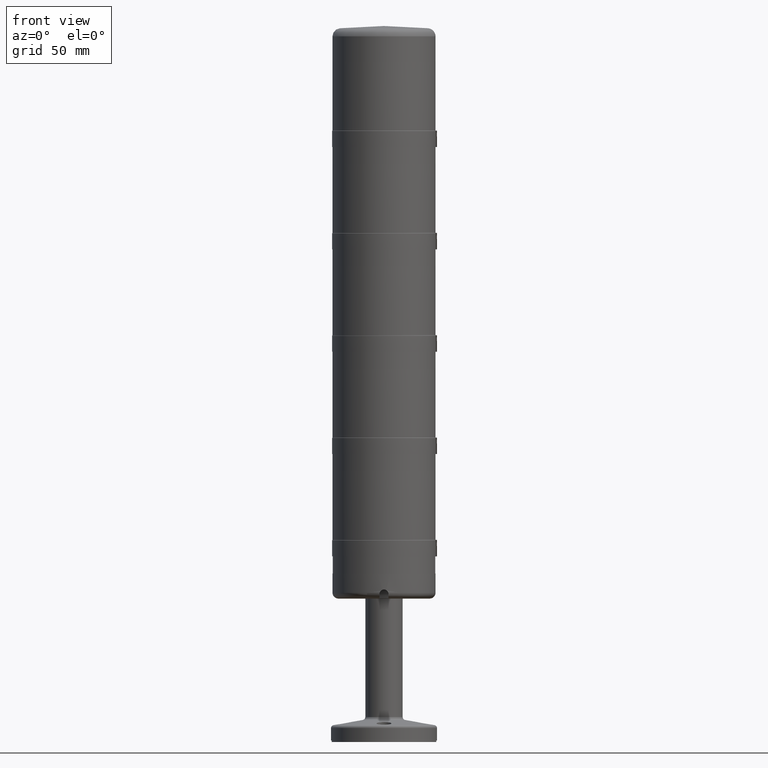
[diagram: clean part render]
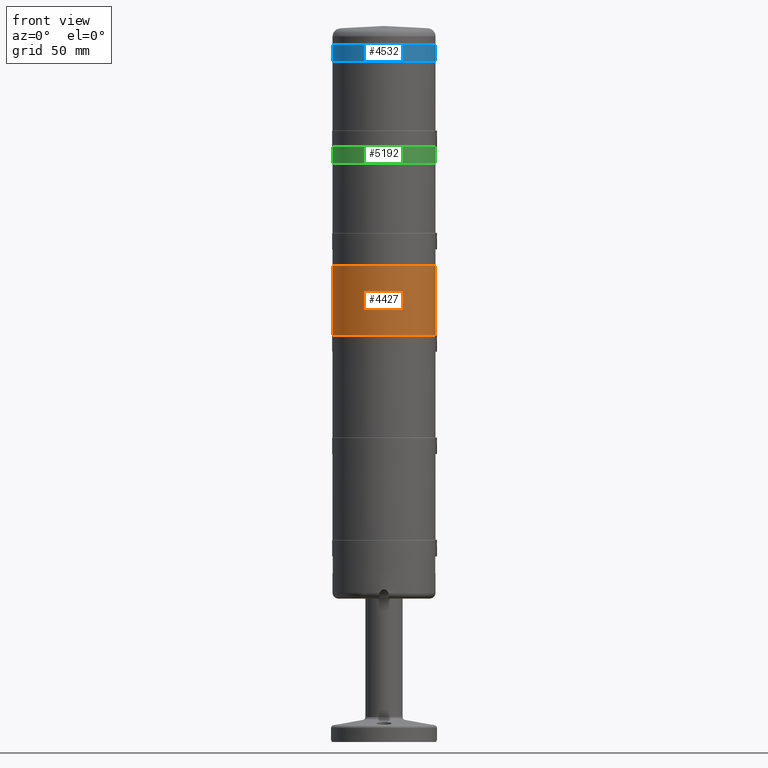
[diagram: same view with three faces highlighted in distinct colors, each labeled with its STEP entity id]
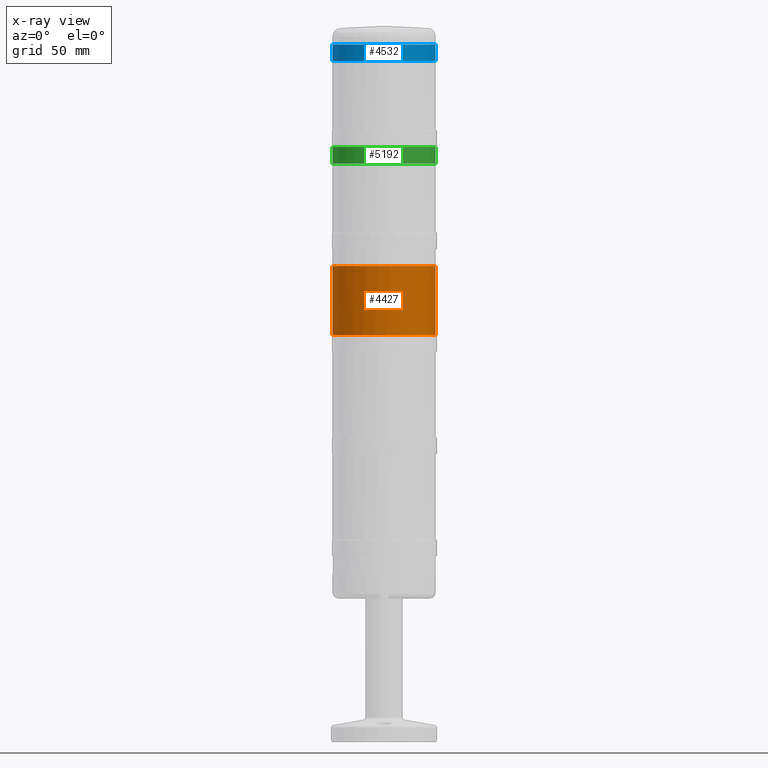
[diagram: x-ray of the same camera — body ghosted, the three highlighted faces saturated]
A machine part, front view with three faces highlighted in distinct colors.
The next image is the same camera in x-ray (body ghosted, the three faces saturated) — at least one of them is partly hidden behind the body in this view.
Their STEP definitions:

[orange] entity #4427 — the highlighted cylindrical surface (bore or boss wall) has radius 34.5 mm, axis along (0, 0, -1).
#3333=CYLINDRICAL_SURFACE('',#20079,34.5);
#3761=FACE_BOUND('',#7136,.T.);
#3762=FACE_BOUND('',#7137,.T.);
#4427=ADVANCED_FACE('',(#3761,#3762),#3333,.T.);
#7136=EDGE_LOOP('',(#8810));
#7137=EDGE_LOOP('',(#8811,#8812));
#8810=ORIENTED_EDGE('',*,*,#16238,.T.);
#8811=ORIENTED_EDGE('',*,*,#16239,.F.);
#8812=ORIENTED_EDGE('',*,*,#16182,.F.);
#14242=VERTEX_POINT('',#28781);
#14243=VERTEX_POINT('',#28783);
#14289=VERTEX_POINT('',#28902);
#16182=EDGE_CURVE('',#14242,#14243,#18900,.T.);
#16238=EDGE_CURVE('',#14289,#14289,#18935,.T.);
#16239=EDGE_CURVE('',#14243,#14242,#18936,.T.);
#18900=CIRCLE('',#20034,34.5);
#18935=CIRCLE('',#20077,34.5);
#18936=CIRCLE('',#20078,34.5);
#20034=AXIS2_PLACEMENT_3D('',#28782,#22553,#22554);
#20077=AXIS2_PLACEMENT_3D('',#28901,#22657,#22658);
#20078=AXIS2_PLACEMENT_3D('',#28903,#22659,#22660);
#20079=AXIS2_PLACEMENT_3D('',#28904,#22661,#22662);
#22553=DIRECTION('',(0.,0.,-1.));
#22554=DIRECTION('',(-1.,0.,0.));
#22657=DIRECTION('',(0.,0.,-1.));
#22658=DIRECTION('',(-1.,0.,0.));
#22659=DIRECTION('',(0.,0.,-1.));
#22660=DIRECTION('',(-1.,0.,0.));
#22661=DIRECTION('',(0.,0.,-1.));
#22662=DIRECTION('',(-1.,0.,0.));
#28781=CARTESIAN_POINT('',(34.2245537372076,-4.35085296108588,215.));
#28782=CARTESIAN_POINT('',(0.,-7.91033905045424E-016,215.));
#28783=CARTESIAN_POINT('',(33.4740683936435,8.35085296108588,215.));
#28901=CARTESIAN_POINT('',(0.,-7.91033905045424E-016,261.3));
#28902=CARTESIAN_POINT('',(-34.5,-7.91033905045424E-016,261.3));
#28903=CARTESIAN_POINT('',(0.,-7.91033905045424E-016,215.));
#28904=CARTESIAN_POINT('',(0.,-7.91033905045424E-016,204.));

[blue] entity #4532 — the highlighted cylindrical surface (bore or boss wall) has radius 34.5 mm, axis along (0, 0, 1).
#3371=CYLINDRICAL_SURFACE('',#20249,34.5);
#3813=FACE_BOUND('',#7267,.T.);
#3814=FACE_BOUND('',#7268,.T.);
#4532=ADVANCED_FACE('',(#3813,#3814),#3371,.T.);
#7267=EDGE_LOOP('',(#9244));
#7268=EDGE_LOOP('',(#9245));
#9244=ORIENTED_EDGE('',*,*,#16394,.F.);
#9245=ORIENTED_EDGE('',*,*,#16395,.T.);
#14375=VERTEX_POINT('',#29293);
#14376=VERTEX_POINT('',#29296);
#16394=EDGE_CURVE('',#14375,#14375,#18990,.T.);
#16395=EDGE_CURVE('',#14376,#14376,#18991,.T.);
#18990=CIRCLE('',#20246,34.5);
#18991=CIRCLE('',#20248,34.5);
#20246=AXIS2_PLACEMENT_3D('',#29292,#23084,#23085);
#20248=AXIS2_PLACEMENT_3D('',#29295,#23088,#23089);
#20249=AXIS2_PLACEMENT_3D('',#29297,#23090,#23091);
#23084=DIRECTION('',(0.,0.,1.));
#23085=DIRECTION('',(1.,0.,0.));
#23088=DIRECTION('',(0.,0.,1.));
#23089=DIRECTION('',(1.,0.,0.));
#23090=DIRECTION('',(0.,0.,1.));
#23091=DIRECTION('',(1.,0.,0.));
#29292=CARTESIAN_POINT('',(0.,-7.91033905045424E-016,409.5));
#29293=CARTESIAN_POINT('',(34.5,-7.91033905045424E-016,409.5));
#29295=CARTESIAN_POINT('',(0.,-7.91033905045424E-016,398.3));
#29296=CARTESIAN_POINT('',(34.5,-7.91033905045424E-016,398.3));
#29297=CARTESIAN_POINT('',(0.,-7.91033905045424E-016,408.));

[green] entity #5192 — the highlighted cylindrical surface (bore or boss wall) has radius 34.5 mm, axis along (0, 0, 1).
#3609=CYLINDRICAL_SURFACE('',#21617,34.5);
#4142=FACE_BOUND('',#8106,.T.);
#4143=FACE_BOUND('',#8107,.T.);
#5192=ADVANCED_FACE('',(#4142,#4143),#3609,.T.);
#8106=EDGE_LOOP('',(#12388));
#8107=EDGE_LOOP('',(#12389));
#12388=ORIENTED_EDGE('',*,*,#17966,.F.);
#12389=ORIENTED_EDGE('',*,*,#17967,.T.);
#15464=VERTEX_POINT('',#33430);
#15465=VERTEX_POINT('',#33433);
#17966=EDGE_CURVE('',#15464,#15464,#19610,.T.);
#17967=EDGE_CURVE('',#15465,#15465,#19611,.T.);
#19610=CIRCLE('',#21614,34.5);
#19611=CIRCLE('',#21616,34.5);
#21614=AXIS2_PLACEMENT_3D('',#33429,#26613,#26614);
#21616=AXIS2_PLACEMENT_3D('',#33432,#26617,#26618);
#21617=AXIS2_PLACEMENT_3D('',#33434,#26619,#26620);
#26613=DIRECTION('',(0.,0.,1.));
#26614=DIRECTION('',(1.,0.,0.));
#26617=DIRECTION('',(0.,0.,1.));
#26618=DIRECTION('',(1.,0.,0.));
#26619=DIRECTION('',(0.,0.,1.));
#26620=DIRECTION('',(1.,0.,0.));
#33429=CARTESIAN_POINT('',(0.,-7.91033905045424E-016,341.));
#33430=CARTESIAN_POINT('',(34.5,-7.91033905045424E-016,341.));
#33432=CARTESIAN_POINT('',(0.,-7.91033905045424E-016,329.8));
#33433=CARTESIAN_POINT('',(34.5,-7.91033905045424E-016,329.8));
#33434=CARTESIAN_POINT('',(0.,-7.91033905045424E-016,339.5));